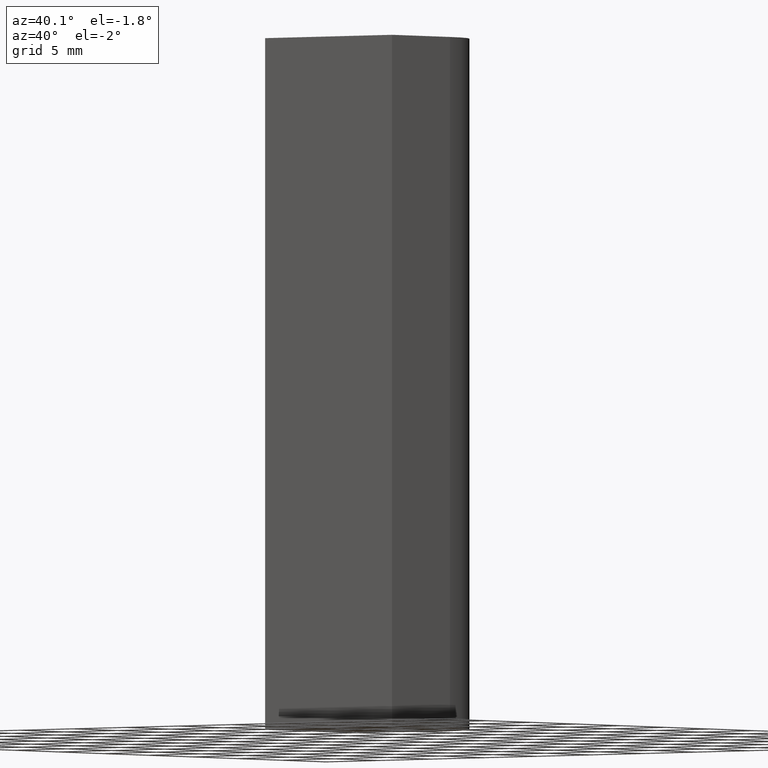
[diagram: clean part render]
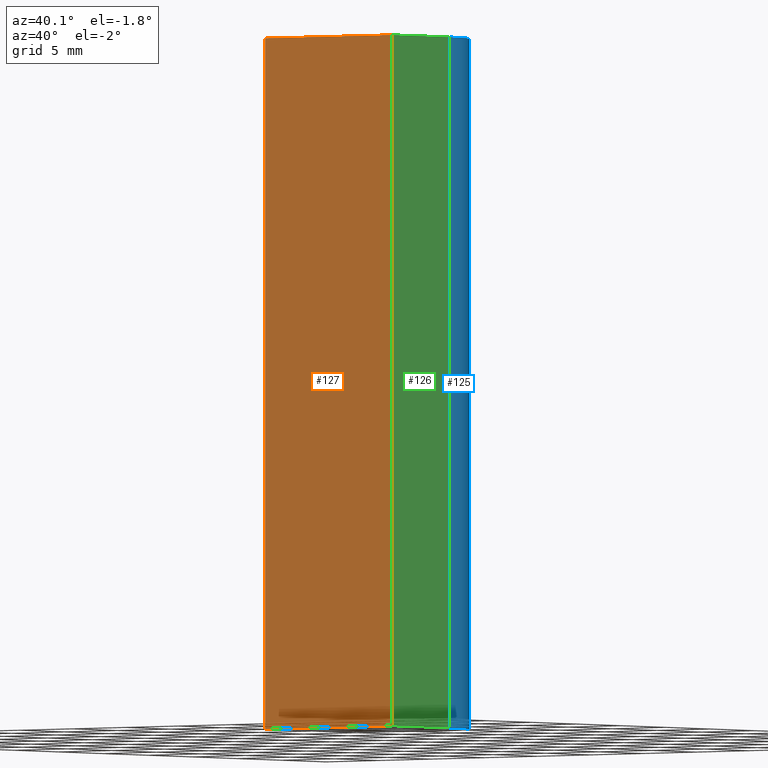
[diagram: same view with three faces highlighted in distinct colors, each labeled with its STEP entity id]
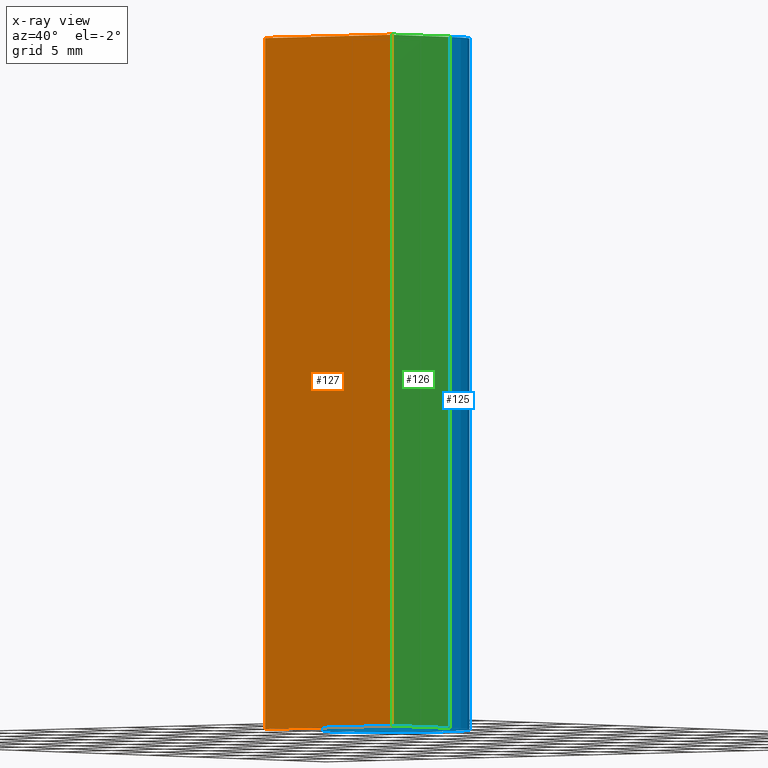
[diagram: x-ray of the same camera — body ghosted, the three highlighted faces saturated]
A machine part, auxiliary view with three faces highlighted in distinct colors.
The next image is the same camera in x-ray (body ghosted, the three faces saturated) — at least one of them is partly hidden behind the body in this view.
Their STEP definitions:

[orange] entity #127 — the highlighted planar face has unit normal (0, -1, 0).
#21=PLANE('',#161);
#28=FACE_OUTER_BOUND('',#36,.T.);
#36=EDGE_LOOP('',(#111,#112,#113,#114));
#41=LINE('',#210,#52);
#45=LINE('',#219,#56);
#48=LINE('',#227,#59);
#49=LINE('',#229,#60);
#52=VECTOR('',#175,10.);
#56=VECTOR('',#183,10.);
#59=VECTOR('',#192,10.);
#60=VECTOR('',#195,10.);
#67=VERTEX_POINT('',#206);
#69=VERTEX_POINT('',#209);
#71=VERTEX_POINT('',#215);
#74=VERTEX_POINT('',#225);
#79=EDGE_CURVE('',#69,#67,#41,.T.);
#84=EDGE_CURVE('',#71,#69,#45,.T.);
#88=EDGE_CURVE('',#67,#74,#48,.T.);
#89=EDGE_CURVE('',#74,#71,#49,.T.);
#111=ORIENTED_EDGE('',*,*,#89,.T.);
#112=ORIENTED_EDGE('',*,*,#84,.T.);
#113=ORIENTED_EDGE('',*,*,#79,.T.);
#114=ORIENTED_EDGE('',*,*,#88,.T.);
#127=ADVANCED_FACE('',(#28),#21,.T.);
#161=AXIS2_PLACEMENT_3D('',#228,#193,#194);
#175=DIRECTION('',(1.,0.,0.));
#183=DIRECTION('',(0.,0.,-1.));
#192=DIRECTION('',(0.,0.,1.));
#193=DIRECTION('center_axis',(0.,-1.,0.));
#194=DIRECTION('ref_axis',(0.,0.,-1.));
#195=DIRECTION('',(-1.,0.,0.));
#206=CARTESIAN_POINT('',(6.,-6.25,-25.));
#209=CARTESIAN_POINT('',(-6.,-6.25,-25.));
#210=CARTESIAN_POINT('',(-6.,-6.25,-25.));
#215=CARTESIAN_POINT('',(-6.,-6.25,25.));
#219=CARTESIAN_POINT('',(-6.,-6.25,0.));
#225=CARTESIAN_POINT('',(6.,-6.25,25.));
#227=CARTESIAN_POINT('',(6.,-6.25,0.));
#228=CARTESIAN_POINT('Origin',(6.,-6.25,0.));
#229=CARTESIAN_POINT('',(-6.,-6.25,25.));

[blue] entity #125 — the highlighted cylindrical surface (partial cylindrical patch) has radius 6 mm, axis along (0, 0, 1).
#26=FACE_OUTER_BOUND('',#34,.T.);
#34=EDGE_LOOP('',(#103,#104,#105,#106));
#44=LINE('',#218,#55);
#46=LINE('',#223,#57);
#55=VECTOR('',#182,10.);
#57=VECTOR('',#188,10.);
#63=CIRCLE('',#156,6.);
#64=CIRCLE('',#159,6.);
#68=VERTEX_POINT('',#207);
#70=VERTEX_POINT('',#211);
#72=VERTEX_POINT('',#216);
#73=VERTEX_POINT('',#221);
#81=EDGE_CURVE('',#68,#70,#63,.T.);
#83=EDGE_CURVE('',#70,#72,#44,.T.);
#85=EDGE_CURVE('',#72,#73,#64,.T.);
#86=EDGE_CURVE('',#68,#73,#46,.T.);
#103=ORIENTED_EDGE('',*,*,#85,.T.);
#104=ORIENTED_EDGE('',*,*,#86,.F.);
#105=ORIENTED_EDGE('',*,*,#81,.T.);
#106=ORIENTED_EDGE('',*,*,#83,.T.);
#121=CYLINDRICAL_SURFACE('',#158,6.);
#125=ADVANCED_FACE('',(#26),#121,.T.);
#156=AXIS2_PLACEMENT_3D('',#213,#177,#178);
#158=AXIS2_PLACEMENT_3D('',#220,#184,#185);
#159=AXIS2_PLACEMENT_3D('',#222,#186,#187);
#177=DIRECTION('center_axis',(0.,0.,1.));
#178=DIRECTION('ref_axis',(1.85037170770859E-16,1.,0.));
#182=DIRECTION('',(0.,0.,1.));
#184=DIRECTION('center_axis',(0.,0.,1.));
#185=DIRECTION('ref_axis',(1.,1.85037170770859E-16,0.));
#186=DIRECTION('center_axis',(0.,0.,-1.));
#187=DIRECTION('ref_axis',(1.,1.85037170770859E-16,0.));
#188=DIRECTION('',(0.,0.,1.));
#207=CARTESIAN_POINT('',(6.,0.25,-25.));
#211=CARTESIAN_POINT('',(-6.,0.25,-25.));
#213=CARTESIAN_POINT('Origin',(-3.33066907387547E-15,0.250000000000001,
-25.));
#216=CARTESIAN_POINT('',(-6.,0.25,25.));
#218=CARTESIAN_POINT('',(-6.,0.25,0.));
#220=CARTESIAN_POINT('Origin',(0.,0.249999999999999,0.));
#221=CARTESIAN_POINT('',(6.,0.25,25.));
#222=CARTESIAN_POINT('Origin',(0.,0.249999999999999,25.));
#223=CARTESIAN_POINT('',(6.,0.25,0.));

[green] entity #126 — the highlighted planar face has unit normal (1, 0, 0).
#20=PLANE('',#160);
#27=FACE_OUTER_BOUND('',#35,.T.);
#35=EDGE_LOOP('',(#107,#108,#109,#110));
#40=LINE('',#208,#51);
#46=LINE('',#223,#57);
#47=LINE('',#226,#58);
#48=LINE('',#227,#59);
#51=VECTOR('',#174,10.);
#57=VECTOR('',#188,10.);
#58=VECTOR('',#191,10.);
#59=VECTOR('',#192,10.);
#67=VERTEX_POINT('',#206);
#68=VERTEX_POINT('',#207);
#73=VERTEX_POINT('',#221);
#74=VERTEX_POINT('',#225);
#78=EDGE_CURVE('',#67,#68,#40,.T.);
#86=EDGE_CURVE('',#68,#73,#46,.T.);
#87=EDGE_CURVE('',#73,#74,#47,.T.);
#88=EDGE_CURVE('',#67,#74,#48,.T.);
#107=ORIENTED_EDGE('',*,*,#87,.T.);
#108=ORIENTED_EDGE('',*,*,#88,.F.);
#109=ORIENTED_EDGE('',*,*,#78,.T.);
#110=ORIENTED_EDGE('',*,*,#86,.T.);
#126=ADVANCED_FACE('',(#27),#20,.T.);
#160=AXIS2_PLACEMENT_3D('',#224,#189,#190);
#174=DIRECTION('',(-3.41607084500048E-16,1.,0.));
#188=DIRECTION('',(0.,0.,1.));
#189=DIRECTION('center_axis',(1.,3.41607084500048E-16,0.));
#190=DIRECTION('ref_axis',(0.,0.,-1.));
#191=DIRECTION('',(3.41607084500048E-16,-1.,0.));
#192=DIRECTION('',(0.,0.,1.));
#206=CARTESIAN_POINT('',(6.,-6.25,-25.));
#207=CARTESIAN_POINT('',(6.,0.25,-25.));
#208=CARTESIAN_POINT('',(6.,-6.25,-25.));
#221=CARTESIAN_POINT('',(6.,0.25,25.));
#223=CARTESIAN_POINT('',(6.,0.25,0.));
#224=CARTESIAN_POINT('Origin',(6.,0.25,0.));
#225=CARTESIAN_POINT('',(6.,-6.25,25.));
#226=CARTESIAN_POINT('',(6.,-6.25,25.));
#227=CARTESIAN_POINT('',(6.,-6.25,0.));